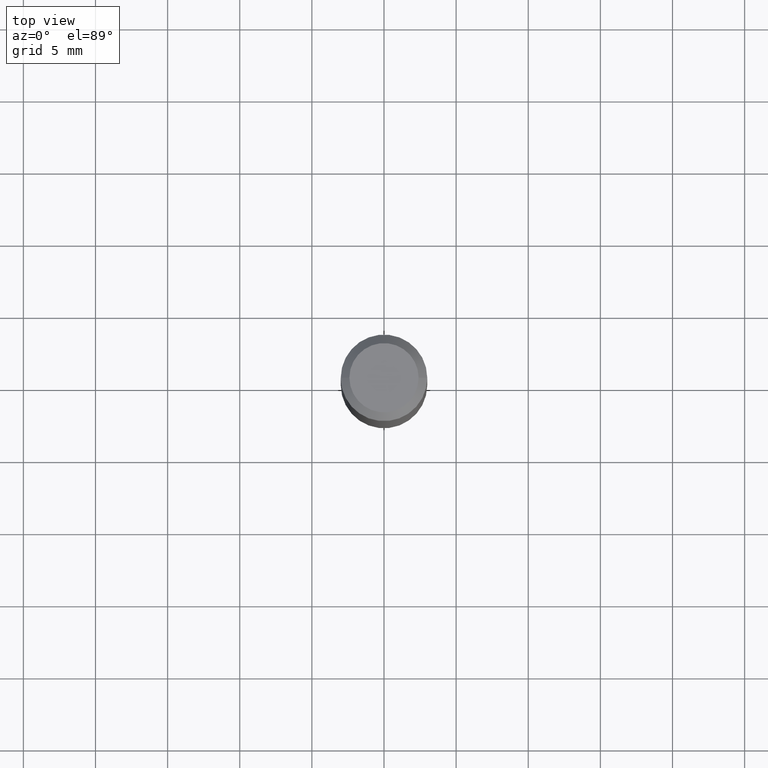
[diagram: clean part render]
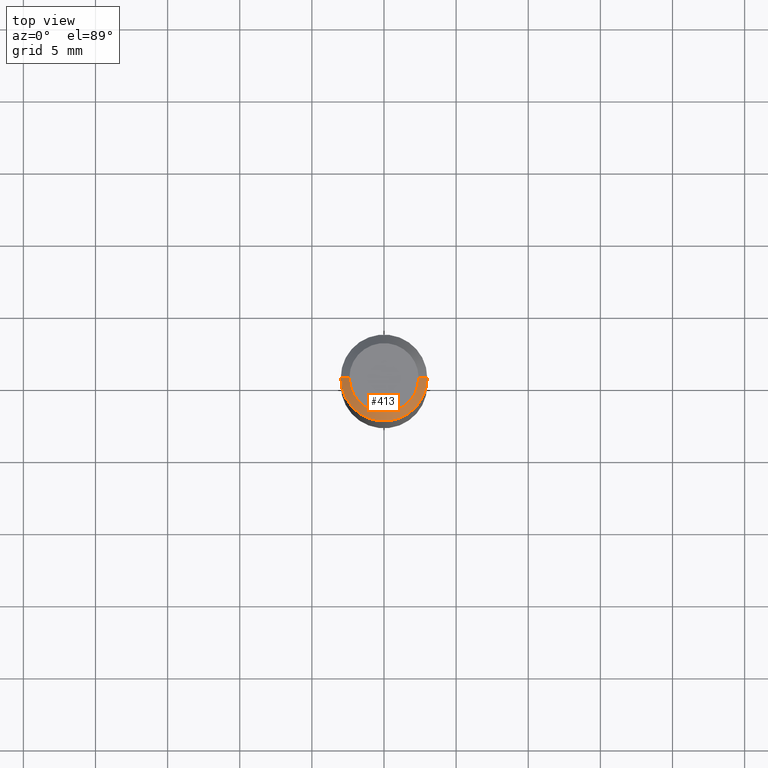
[diagram: same view with one face highlighted and labeled with its STEP entity id]
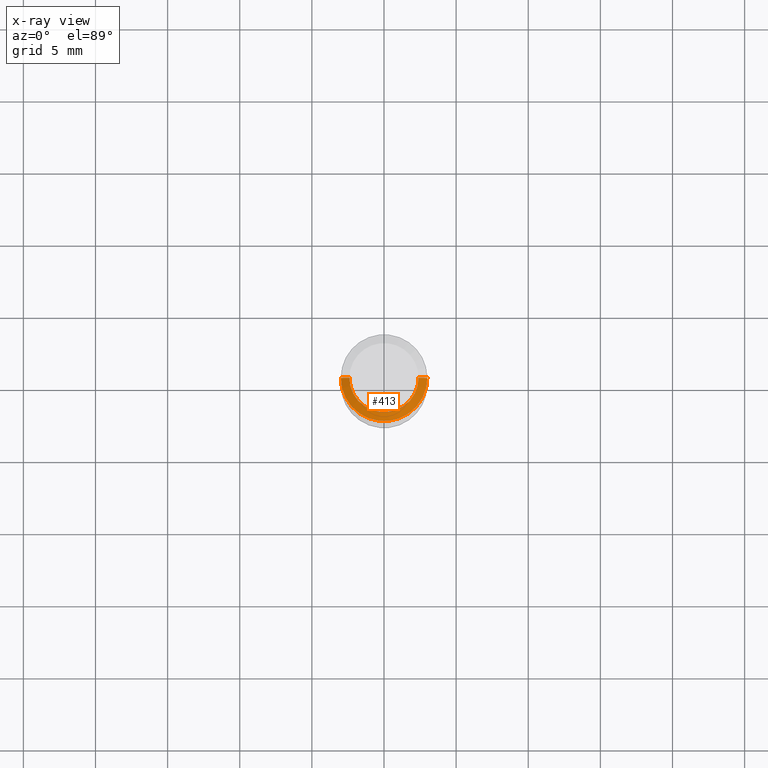
[diagram: x-ray of the same camera — body ghosted, the highlighted face saturated]
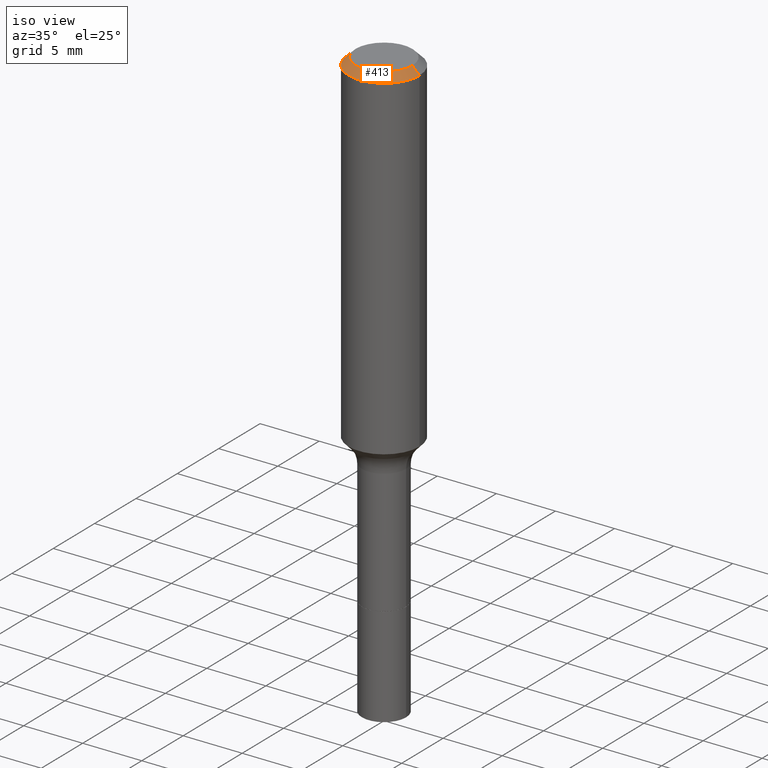
[diagram: same view with one face highlighted and labeled with its STEP entity id]
A machine part, top view. The second image highlights one B-rep face of the part: STEP entity #413.
The next image is the same camera in x-ray: the body ghosted, the highlighted face saturated — about 0% of this face is hidden behind the body in this view.
A second angle (iso view) of the same face is appended — the face is thin or edge-on in the first view.
In plain terms, the highlighted conical surface has half-angle 45 deg.
Its self-contained STEP definition (entity closure, byte-faithful):
#29 = CARTESIAN_POINT ( 'NONE',  ( 0.09447999999999998066, -7.704367267948738690E-16, -3.085620075131172158E-17 ) ) ;
#31 = DIRECTION ( 'NONE',  ( 0.7071067811865460184, -7.319954787623251312E-15, -0.7071067811865490160 ) ) ;
#42 = EDGE_CURVE ( 'NONE', #388, #425, #364, .T. ) ;
#48 = EDGE_CURVE ( 'NONE', #388, #414, #211, .T. ) ;
#56 = EDGE_LOOP ( 'NONE', ( #302, #99, #307, #279 ) ) ;
#57 = CARTESIAN_POINT ( 'NONE',  ( -0.09447999999999998066, 7.009847083995354710E-16, -3.085620075132147757E-17 ) ) ;
#72 = CARTESIAN_POINT ( 'NONE',  ( 0.1180999999999999966, -9.071566814582237199E-16, -0.02362000000000014435 ) ) ;
#77 = CARTESIAN_POINT ( 'NONE',  ( 5.776197320209328408E-31, -8.246878922347560526E-17, -0.02362000000000014435 ) ) ;
#80 = VECTOR ( 'NONE', #163, 39.37007874015748143 ) ;
#82 = CARTESIAN_POINT ( 'NONE',  ( 0.1180999999999999966, -8.926936027602933910E-16, -0.02362000000000014435 ) ) ;
#91 = EDGE_CURVE ( 'NONE', #425, #138, #296, .T. ) ;
#96 = VECTOR ( 'NONE', #31, 39.37007874015748143 ) ;
#99 = ORIENTED_EDGE ( 'NONE', *, *, #48, .F. ) ;
#131 = AXIS2_PLACEMENT_3D ( 'NONE', #77, #397, #319 ) ;
#138 = VERTEX_POINT ( 'NONE', #72 ) ;
#163 = DIRECTION ( 'NONE',  ( -0.7071067811865460184, 2.468850131082241283E-15, -0.7071067811865490160 ) ) ;
#190 = DIRECTION ( 'NONE',  ( -1.000000000000000000, 6.982962677686266711E-15, 0.000000000000000000 ) ) ;
#191 = EDGE_CURVE ( 'NONE', #414, #138, #290, .T. ) ;
#193 = CARTESIAN_POINT ( 'NONE',  ( -0.1180999999999999966, 7.422191030112725094E-16, -0.02362000000000014435 ) ) ;
#211 = CIRCLE ( 'NONE', #517, 0.09447999999999998066 ) ;
#220 = CARTESIAN_POINT ( 'NONE',  ( 5.776197320209328408E-31, -8.246878922347560526E-17, -0.02362000000000014435 ) ) ;
#249 = DIRECTION ( 'NONE',  ( -2.445468806185136597E-29, 3.491481338843145583E-15, 1.000000000000000000 ) ) ;
#276 = CONICAL_SURFACE ( 'NONE', #445, 0.1180999999999999966, 0.7853981633974461696 ) ;
#279 = ORIENTED_EDGE ( 'NONE', *, *, #91, .T. ) ;
#290 = LINE ( 'NONE', #82, #96 ) ;
#296 = CIRCLE ( 'NONE', #131, 0.1180999999999999966 ) ;
#302 = ORIENTED_EDGE ( 'NONE', *, *, #191, .F. ) ;
#307 = ORIENTED_EDGE ( 'NONE', *, *, #42, .T. ) ;
#319 = DIRECTION ( 'NONE',  ( 1.000000000000000000, -6.982962677686266711E-15, 0.000000000000000000 ) ) ;
#321 = CARTESIAN_POINT ( 'NONE',  ( 7.545787641473140628E-46, -1.077338491108201769E-31, -3.085620075131671975E-17 ) ) ;
#352 = CARTESIAN_POINT ( 'NONE',  ( -0.1180999999999999966, -1.194252003647858156E-15, -0.02362000000000014435 ) ) ;
#364 = LINE ( 'NONE', #193, #80 ) ;
#383 = FACE_OUTER_BOUND ( 'NONE', #56, .T. ) ;
#388 = VERTEX_POINT ( 'NONE', #57 ) ;
#397 = DIRECTION ( 'NONE',  ( -2.445468806185136597E-29, 3.491481338843145583E-15, 1.000000000000000000 ) ) ;
#413 = ADVANCED_FACE ( 'NONE', ( #383 ), #276, .T. ) ;
#414 = VERTEX_POINT ( 'NONE', #29 ) ;
#425 = VERTEX_POINT ( 'NONE', #352 ) ;
#445 = AXIS2_PLACEMENT_3D ( 'NONE', #220, #464, #190 ) ;
#464 = DIRECTION ( 'NONE',  ( 2.445468806185136597E-29, -3.491481338843145583E-15, -1.000000000000000000 ) ) ;
#481 = DIRECTION ( 'NONE',  ( 1.000000000000000000, -6.982962677686267499E-15, 4.875432709231658792E-29 ) ) ;
#517 = AXIS2_PLACEMENT_3D ( 'NONE', #321, #249, #481 ) ;